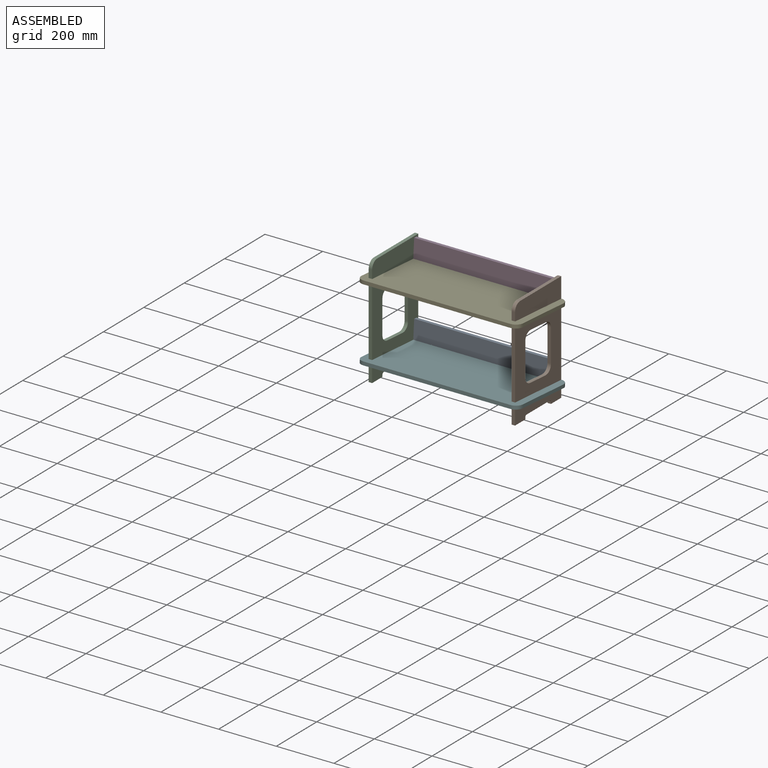
[diagram: assembled view]
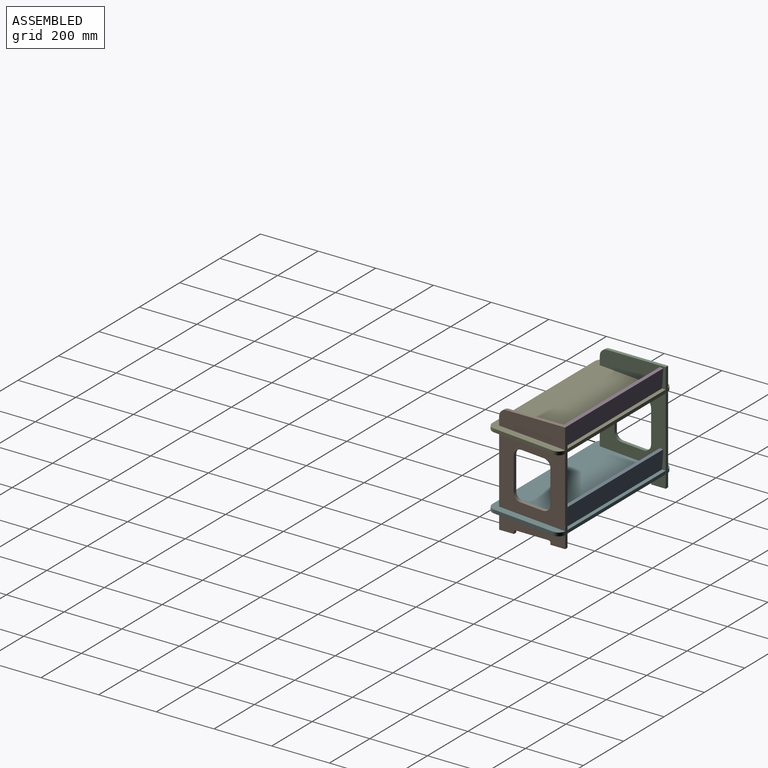
[diagram: assembled view, second angle]
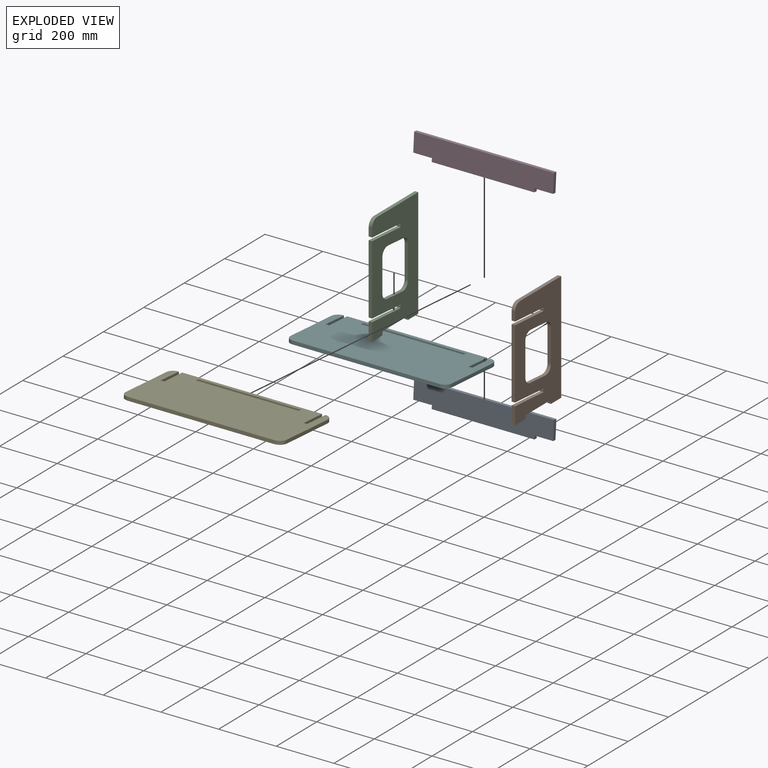
[diagram: exploded view]
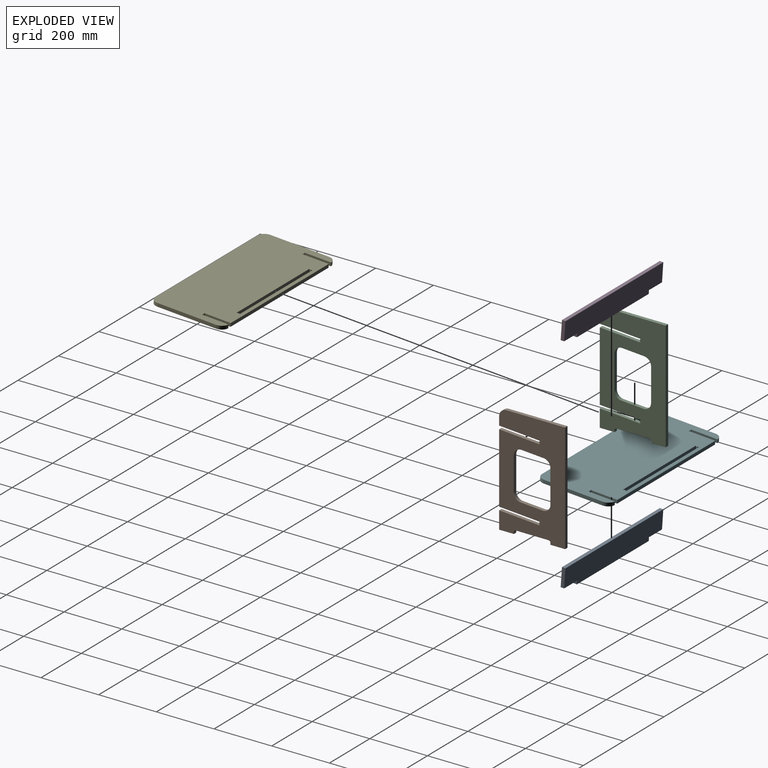
[diagram: exploded view, second angle]
ASSEMBLY  parts=6 mates=5
PART A: 12 faces, bbox 484.8x12x76.2 mm
  f0: cylinder r=1.6mm len=12mm, axis (0,1,0), area 60.3mm2, adj f1,f9,f10,f11
  f1: plane 12x12mm, normal (-1,0,0), area 144mm2, adj f0,f2,f10,f11
  f2: plane 355.6x12mm, normal (0,0,-1), area 4267.2mm2, adj f1,f3,f10,f11
  f3: plane 12x12mm, normal (1,0,0), area 144mm2, adj f2,f4,f10,f11
  f4: cylinder r=1.6mm len=12mm, axis (0,1,0), area 60.3mm2, adj f3,f5,f10,f11
  f5: plane 61.38x12mm, normal (0,0,-1), area 736.6mm2, adj f4,f6,f10,f11
  f6: plane 64.2x12mm, normal (1,0,0), area 770.4mm2, adj f5,f7,f10,f11
  f7: plane 484.76x12mm, normal (0,0,1), area 5817.1mm2, adj f6,f8,f10,f11
  f8: plane 64.2x12mm, normal (-1,0,0), area 770.4mm2, adj f7,f9,f10,f11
  f9: plane 61.38x12mm, normal (0,0,-1), area 736.6mm2, adj f0,f8,f10,f11
  f10: plane 484.76x76.2mm, normal (0,-1,0), area 35380.9mm2, adj f0,f1,f2,f3,f4,f5,f6,f7
  f11: plane 484.76x76.2mm, normal (0,1,0), area 35380.9mm2, adj f0,f1,f2,f3,f4,f5,f6,f7
PART B: 33 faces, bbox 12x228.6x381 mm
  f0: plane 50.8x12mm, normal (0,0,-1), area 609.6mm2, adj f1,f3,f18,f23
  f1: plane 381x228.6mm, normal (1,0,0), area 61673.5mm2, adj f0,f2,f3,f4,f5,f6,f7,f8
  f2: plane 138.56x12mm, normal (0,0.07,1), area 1666.8mm2, adj f1,f3,f17,f18
  f3: plane 60.49x12mm, normal (0,-1,0), area 725.9mm2, adj f0,f1,f2,f18
  f4: plane 50.8x12mm, normal (0,0,-1), area 609.6mm2, adj f1,f5,f18,f20
  f5: plane 381x12mm, normal (0,1,0), area 4572mm2, adj f1,f4,f6,f18
  f6: plane 203.2x12mm, normal (0,0,1), area 2438.4mm2, adj f1,f5,f18,f19
  f7: plane 29.58x12mm, normal (0,-1,0), area 355mm2, adj f1,f8,f18,f19
  f8: plane 139.36x12mm, normal (0,-0.07,-1), area 1676.4mm2, adj f1,f7,f9,f18
  f9: cylinder r=1.6mm len=12mm, axis (-1,0,0), area 60.3mm2, adj f1,f8,f10,f18
  f10: plane 12x5.09mm, normal (0,-1,0.07), area 61.2mm2, adj f1,f9,f11,f18
  f11: cylinder r=1.6mm len=12mm, axis (-1,0,0), area 60.3mm2, adj f1,f10,f12,f18
  f12: plane 138.56x12mm, normal (0,0.07,1), area 1666.8mm2, adj f1,f11,f13,f18
  f13: plane 242.47x12mm, normal (0,-1,0), area 2909.7mm2, adj f1,f12,f14,f18
  f14: plane 139.36x12mm, normal (0,-0.07,-1), area 1676.4mm2, adj f1,f13,f15,f18
  f15: cylinder r=1.6mm len=12mm, axis (-1,0,0), area 60.3mm2, adj f1,f14,f16,f18
  f16: plane 12x5.09mm, normal (0,-1,0.07), area 61.2mm2, adj f1,f15,f17,f18
  f17: cylinder r=1.6mm len=12mm, axis (-1,0,0), area 60.3mm2, adj f1,f2,f16,f18
  f18: plane 381x228.6mm, normal (-1,0,0), area 61673.5mm2, adj f0,f2,f3,f4,f5,f6,f7,f8
  f19: cylinder r=25.4mm len=25.4mm, axis (-1,0,0), area 478.8mm2, adj f1,f6,f7,f18
  f20: plane 12x6.35mm, normal (0,-1,0), area 76.2mm2, adj f1,f4,f18,f21
  f21: cylinder r=6.35mm len=12mm, axis (1,0,0), area 119.7mm2, adj f1,f18,f20,f22
  f22: plane 114.3x12mm, normal (0,0,-1), area 1371.6mm2, adj f1,f18,f21,f24
  f23: plane 12x6.35mm, normal (0,1,0), area 76.2mm2, adj f0,f1,f18,f24
  f24: cylinder r=6.35mm len=12mm, axis (1,0,0), area 119.7mm2, adj f1,f18,f22,f23
  f25: plane 114.66x12mm, normal (0,-1,0), area 1375.9mm2, adj f1,f18,f26,f32
  f26: cylinder r=25.4mm len=25.34mm, axis (1,0,0), area 457.5mm2, adj f1,f18,f25,f27
  f27: plane 76.2x12mm, normal (0,-0.07,-1), area 916.6mm2, adj f1,f18,f26,f28
  f28: cylinder r=25.4mm len=27.17mm, axis (1,0,0), area 500.1mm2, adj f1,f18,f27,f29
  f29: plane 114.66x12mm, normal (0,1,0), area 1375.9mm2, adj f1,f18,f28,f30
  f30: cylinder r=25.4mm len=25.34mm, axis (1,0,0), area 457.5mm2, adj f1,f18,f29,f31
  f31: plane 76.2x12mm, normal (0,0.07,1), area 916.6mm2, adj f1,f18,f30,f32
  f32: cylinder r=25.4mm len=27.17mm, axis (1,0,0), area 500.1mm2, adj f1,f18,f25,f31
PART C: same geometry as B
PART D: same geometry as A
PART E: 28 faces, bbox 558.8x254x12 mm
  f0: plane 508x12mm, normal (0,-1,0), area 6096mm2, adj f1,f17,f18,f19
  f1: cylinder r=25.4mm len=25.4mm, axis (0,0,-1), area 478.8mm2, adj f0,f2,f18,f19
  f2: plane 203.2x12mm, normal (1,0,0), area 2438.4mm2, adj f1,f3,f18,f19
  f3: cylinder r=25.4mm len=25.4mm, axis (0,0,-1), area 478.8mm2, adj f2,f4,f18,f19
  f4: plane 90.22x12mm, normal (-1,0,0), area 1082.6mm2, adj f3,f5,f18,f19
  f5: cylinder r=1.6mm len=12mm, axis (0,0,-1), area 60.3mm2, adj f4,f6,f18,f19
  f6: plane 12x5.1mm, normal (0,1,0), area 61.2mm2, adj f5,f7,f18,f19
  f7: cylinder r=1.6mm len=12mm, axis (0,0,-1), area 60.3mm2, adj f6,f8,f18,f19
  f8: plane 90.22x12mm, normal (1,0,0), area 1082.6mm2, adj f7,f9,f18,f19
  f9: plane 485x12mm, normal (0,1,0), area 5820mm2, adj f8,f10,f18,f19
  f10: plane 90.22x12mm, normal (-1,0,0), area 1082.6mm2, adj f9,f11,f18,f19
  f11: cylinder r=1.6mm len=12mm, axis (0,0,-1), area 78.9mm2, adj f10,f12,f18,f19
  f12: plane 12x6.49mm, normal (0,1,0), area 77.9mm2, adj f11,f13,f18,f19
  f13: cylinder r=1.6mm len=12mm, axis (0,0,-1), area 78.9mm2, adj f12,f14,f18,f19
  f14: plane 90.22x12mm, normal (1,0,0), area 1082.6mm2, adj f13,f15,f18,f19
  f15: cylinder r=25.4mm len=25.4mm, axis (0,0,-1), area 478.8mm2, adj f14,f16,f18,f19
  f16: plane 203.2x12mm, normal (-1,0,0), area 2438.4mm2, adj f15,f17,f18,f19
  f17: cylinder r=25.4mm len=25.4mm, axis (0,0,-1), area 478.8mm2, adj f0,f16,f18,f19
  f18: plane 558.8x254mm, normal (0,0,1), area 135192mm2, adj f0,f1,f2,f3,f4,f5,f6,f7
  f19: plane 558.8x254mm, normal (0,0,-1), area 135192mm2, adj f0,f1,f2,f3,f4,f5,f6,f7
  f20: cylinder r=1.6mm len=12mm, axis (0,0,1), area 60.3mm2, adj f18,f19,f21,f27
  f21: plane 355.6x12mm, normal (0,1,0), area 4267.2mm2, adj f18,f19,f20,f22
  f22: cylinder r=1.6mm len=12mm, axis (0,0,1), area 60.3mm2, adj f18,f19,f21,f23
  f23: plane 12x5.1mm, normal (-1,0,0), area 61.2mm2, adj f18,f19,f22,f24
  f24: cylinder r=1.6mm len=12mm, axis (0,0,1), area 60.3mm2, adj f18,f19,f23,f25
  f25: plane 355.6x12mm, normal (0,-1,0), area 4267.2mm2, adj f18,f19,f24,f26
  f26: cylinder r=1.6mm len=12mm, axis (0,0,1), area 60.3mm2, adj f18,f19,f25,f27
  f27: plane 12x5.1mm, normal (1,0,0), area 61.2mm2, adj f18,f19,f20,f26
PART F: same geometry as E
PLACE A rot(axis=(-1,0,0),4deg) t=(254.25,103.58,-101.29)mm
PLACE B t=(496.5,-1.32,0.09)mm
PLACE C at identity fixed
PLACE D rot(axis=(-1,0,0),4deg) t=(254.25,103.58,152.71)mm
PLACE E rot(axis=(-1,0,0),4deg) t=(254.25,-13.77,116.71)mm
PLACE F rot(axis=(-1,0,0),4deg) t=(254.25,-13.77,-137.29)mm
MATE fastened E.f6 <-> B.f10  axis (0,1,-0.07) through (502.5,23.34,120.13)mm
MATE fastened D.f3 <-> E.f23  axis (1,0,0) through (432.05,94.94,115.12)mm
MATE fastened C.f16 <-> F.f12  axis (0,-1,0.07) through (6,24.66,-133.96)mm
MATE fastened F.f23 <-> A.f3  axis (-1,0,0) through (432.05,94.94,-138.88)mm
MATE fastened B.f16 <-> F.f6  axis (0,-1,0.07) through (502.5,23.34,-133.87)mm
